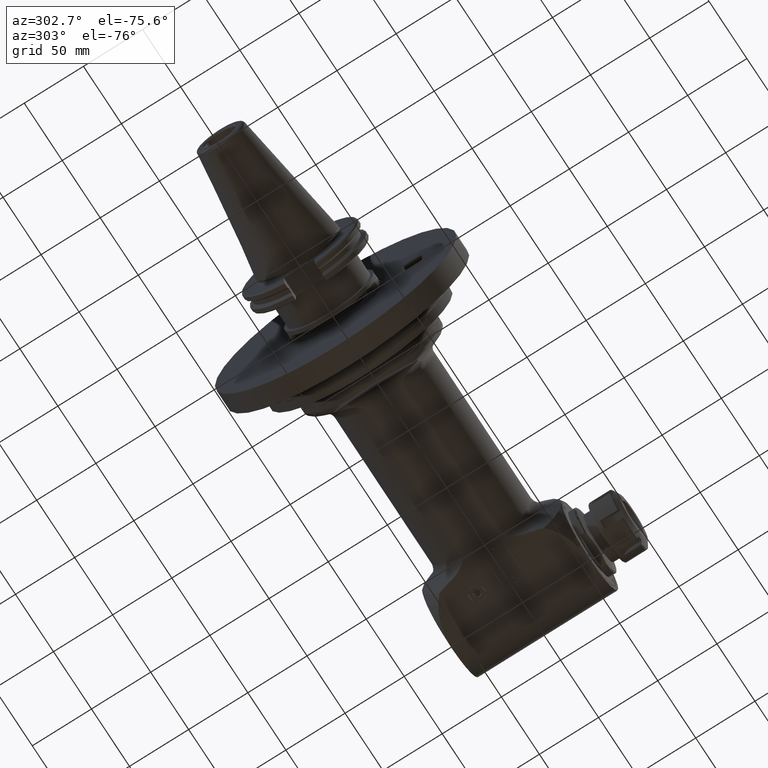
[diagram: clean part render]
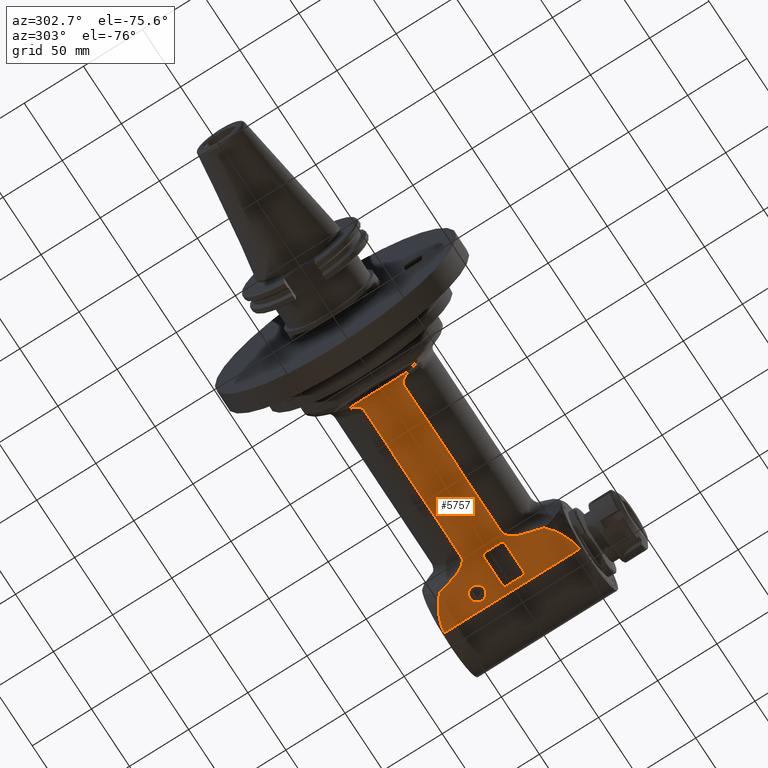
[diagram: same view with one face highlighted and labeled with its STEP entity id]
A machine part, auxiliary view. The second image highlights one B-rep face of the part: STEP entity #5757.
In plain terms, the highlighted planar face has unit normal (0, -0, 1).
Its self-contained STEP definition (entity closure, byte-faithful):
#173=FACE_BOUND('',#860,.T.);
#174=FACE_BOUND('',#861,.T.);
#337=(
BOUNDED_CURVE()
B_SPLINE_CURVE(2,(#9139,#9140,#9141),.UNSPECIFIED.,.F.,.F.)
B_SPLINE_CURVE_WITH_KNOTS((3,3),(4.79555477441371,6.68520697780472),
 .UNSPECIFIED.)
CURVE()
GEOMETRIC_REPRESENTATION_ITEM()
RATIONAL_B_SPLINE_CURVE((1.69612149867023,1.801111277475,1.88075550810713))
REPRESENTATION_ITEM('')
);
#338=(
BOUNDED_CURVE()
B_SPLINE_CURVE(2,(#9143,#9144,#9145),.UNSPECIFIED.,.F.,.F.)
B_SPLINE_CURVE_WITH_KNOTS((3,3),(1.29755190433302,1.81649660283057),
 .UNSPECIFIED.)
CURVE()
GEOMETRIC_REPRESENTATION_ITEM()
RATIONAL_B_SPLINE_CURVE((1.12963768324109,1.15351140083332,1.17574534330147))
REPRESENTATION_ITEM('')
);
#339=(
BOUNDED_CURVE()
B_SPLINE_CURVE(2,(#9147,#9148,#9149),.UNSPECIFIED.,.F.,.F.)
B_SPLINE_CURVE_WITH_KNOTS((3,3),(0.716971306396343,1.10594890275373),
 .UNSPECIFIED.)
CURVE()
GEOMETRIC_REPRESENTATION_ITEM()
RATIONAL_B_SPLINE_CURVE((1.06115823662143,1.07710986727119,1.09236877292359))
REPRESENTATION_ITEM('')
);
#340=(
BOUNDED_CURVE()
B_SPLINE_CURVE(2,(#9151,#9152,#9153),.UNSPECIFIED.,.F.,.F.)
B_SPLINE_CURVE_WITH_KNOTS((3,3),(0.357751352810108,0.644209962076135),
 .UNSPECIFIED.)
CURVE()
GEOMETRIC_REPRESENTATION_ITEM()
RATIONAL_B_SPLINE_CURVE((1.02510632027235,1.03499758933548,1.044632154937))
REPRESENTATION_ITEM('')
);
#341=(
BOUNDED_CURVE()
B_SPLINE_CURVE(2,(#9155,#9156,#9157),.UNSPECIFIED.,.F.,.F.)
B_SPLINE_CURVE_WITH_KNOTS((3,3),(0.0990875874217793,0.320413948043294),
 .UNSPECIFIED.)
CURVE()
GEOMETRIC_REPRESENTATION_ITEM()
RATIONAL_B_SPLINE_CURVE((1.00423924883125,1.0089608143977,1.01362466237175))
REPRESENTATION_ITEM('')
);
#342=(
BOUNDED_CURVE()
B_SPLINE_CURVE(2,(#9159,#9160,#9161),.UNSPECIFIED.,.F.,.F.)
B_SPLINE_CURVE_WITH_KNOTS((3,3),(1.04117070506586,1.17372897081085),
 .UNSPECIFIED.)
CURVE()
GEOMETRIC_REPRESENTATION_ITEM()
RATIONAL_B_SPLINE_CURVE((1.00159422133823,1.00168983751205,1.00178395919087))
REPRESENTATION_ITEM('')
);
#343=(
BOUNDED_CURVE()
B_SPLINE_CURVE(2,(#9165,#9166,#9167),.UNSPECIFIED.,.F.,.F.)
B_SPLINE_CURVE_WITH_KNOTS((3,3),(17.8704813916167,18.0030396573599),
 .UNSPECIFIED.)
CURVE()
GEOMETRIC_REPRESENTATION_ITEM()
RATIONAL_B_SPLINE_CURVE((1.00178395919066,1.00168983751184,1.00159422133802))
REPRESENTATION_ITEM('')
);
#344=(
BOUNDED_CURVE()
B_SPLINE_CURVE(2,(#9169,#9170,#9171),.UNSPECIFIED.,.F.,.F.)
B_SPLINE_CURVE_WITH_KNOTS((3,3),(36.0887977519412,36.3101241125708),
 .UNSPECIFIED.)
CURVE()
GEOMETRIC_REPRESENTATION_ITEM()
RATIONAL_B_SPLINE_CURVE((1.01362466237174,1.00896081439753,1.00423924883091))
REPRESENTATION_ITEM('')
);
#345=(
BOUNDED_CURVE()
B_SPLINE_CURVE(2,(#9173,#9174,#9175),.UNSPECIFIED.,.F.,.F.)
B_SPLINE_CURVE_WITH_KNOTS((3,3),(22.1468749133055,22.4333335225796),
 .UNSPECIFIED.)
CURVE()
GEOMETRIC_REPRESENTATION_ITEM()
RATIONAL_B_SPLINE_CURVE((1.04463215497998,1.03499758937855,1.02510632031552))
REPRESENTATION_ITEM('')
);
#346=(
BOUNDED_CURVE()
B_SPLINE_CURVE(2,(#9177,#9178,#9179),.UNSPECIFIED.,.F.,.F.)
B_SPLINE_CURVE_WITH_KNOTS((3,3),(18.2422510927696,18.6312286891638),
 .UNSPECIFIED.)
CURVE()
GEOMETRIC_REPRESENTATION_ITEM()
RATIONAL_B_SPLINE_CURVE((1.09236877298422,1.07710986733097,1.06115823668033))
REPRESENTATION_ITEM('')
);
#347=(
BOUNDED_CURVE()
B_SPLINE_CURVE(2,(#9181,#9182,#9183),.UNSPECIFIED.,.F.,.F.)
B_SPLINE_CURVE_WITH_KNOTS((3,3),(15.8893855046156,16.4083302031708),
 .UNSPECIFIED.)
CURVE()
GEOMETRIC_REPRESENTATION_ITEM()
RATIONAL_B_SPLINE_CURVE((1.17574534339004,1.15351140092021,1.12963768332618))
REPRESENTATION_ITEM('')
);
#348=(
BOUNDED_CURVE()
B_SPLINE_CURVE(2,(#9185,#9186,#9187),.UNSPECIFIED.,.F.,.F.)
B_SPLINE_CURVE_WITH_KNOTS((3,3),(18.5610515989433,20.4507038026227),
 .UNSPECIFIED.)
CURVE()
GEOMETRIC_REPRESENTATION_ITEM()
RATIONAL_B_SPLINE_CURVE((1.88075550848633,1.80111127784106,1.69612149902103))
REPRESENTATION_ITEM('')
);
#445=B_SPLINE_CURVE_WITH_KNOTS('',3,(#9086,#9087,#9088,#9089,#9090,#9091,
#9092,#9093,#9094,#9095,#9096,#9097),.UNSPECIFIED.,.F.,.F.,(4,2,2,2,2,4),
(-3.19539997434443,-3.09159271726834,-2.96658047424726,-2.57690997577764,
-2.30235248652145,-2.07011511905514),.UNSPECIFIED.);
#446=B_SPLINE_CURVE_WITH_KNOTS('',3,(#9107,#9108,#9109,#9110,#9111,#9112,
#9113,#9114,#9115,#9116,#9117,#9118),.UNSPECIFIED.,.F.,.F.,(4,2,2,2,2,4),
(2.07011355481796,2.30235248652145,2.57690997577764,2.96658047424726,3.09159271726834,
3.19539997434443),.UNSPECIFIED.);
#447=B_SPLINE_CURVE_WITH_KNOTS('',3,(#9122,#9123,#9124,#9125,#9126,#9127,
#9128,#9129,#9130,#9131,#9132,#9133,#9134,#9135,#9136,#9137),
 .UNSPECIFIED.,.F.,.F.,(4,2,2,2,2,2,2,4),(-5.88450777304076,-5.77989509170607,
-5.41995109479012,-5.06000709787417,-4.79155120042495,-4.52309530297573,
-4.34860436740711,-4.20455674250215),.UNSPECIFIED.);
#448=B_SPLINE_CURVE_WITH_KNOTS('',3,(#9188,#9189,#9190,#9191,#9192,#9193,
#9194,#9195,#9196,#9197,#9198,#9199,#9200,#9201,#9202,#9203),
 .UNSPECIFIED.,.F.,.F.,(4,2,2,2,2,2,2,4),(-4.20455674250215,-4.06050911759719,
-3.88601818202857,-3.61756228457935,-3.34910638713013,-2.98916239021418,
-2.62921839329822,-2.52460571197465),.UNSPECIFIED.);
#490=FACE_OUTER_BOUND('',#859,.T.);
#859=EDGE_LOOP('',(#3904,#3905,#3906,#3907,#3908,#3909,#3910,#3911,#3912,
#3913,#3914,#3915,#3916,#3917,#3918,#3919,#3920,#3921,#3922,#3923));
#860=EDGE_LOOP('',(#3924,#3925,#3926,#3927,#3928,#3929,#3930,#3931));
#861=EDGE_LOOP('',(#3932));
#1331=CIRCLE('',#6218,2.);
#1332=CIRCLE('',#6219,2.);
#1333=CIRCLE('',#6220,2.);
#1334=CIRCLE('',#6221,2.);
#1335=CIRCLE('',#6222,6.25);
#1688=LINE('',#9101,#2033);
#1689=LINE('',#9105,#2034);
#1690=LINE('',#9120,#2035);
#1691=LINE('',#9163,#2036);
#1692=LINE('',#9206,#2037);
#1693=LINE('',#9210,#2038);
#1694=LINE('',#9214,#2039);
#1695=LINE('',#9218,#2040);
#2033=VECTOR('',#7012,127.7897678687);
#2034=VECTOR('',#7017,51.5068624833501);
#2035=VECTOR('',#7018,127.7897678687);
#2036=VECTOR('',#7019,114.180488489);
#2037=VECTOR('',#7020,25.);
#2038=VECTOR('',#7023,14.);
#2039=VECTOR('',#7026,25.);
#2040=VECTOR('',#7029,14.);
#2413=VERTEX_POINT('',#9080);
#2414=VERTEX_POINT('',#9085);
#2415=VERTEX_POINT('',#9100);
#2416=VERTEX_POINT('',#9104);
#2417=VERTEX_POINT('',#9106);
#2418=VERTEX_POINT('',#9119);
#2419=VERTEX_POINT('',#9121);
#2420=VERTEX_POINT('',#9138);
#2421=VERTEX_POINT('',#9142);
#2422=VERTEX_POINT('',#9146);
#2423=VERTEX_POINT('',#9150);
#2424=VERTEX_POINT('',#9154);
#2425=VERTEX_POINT('',#9158);
#2426=VERTEX_POINT('',#9162);
#2427=VERTEX_POINT('',#9164);
#2428=VERTEX_POINT('',#9168);
#2429=VERTEX_POINT('',#9172);
#2430=VERTEX_POINT('',#9176);
#2431=VERTEX_POINT('',#9180);
#2432=VERTEX_POINT('',#9184);
#2433=VERTEX_POINT('',#9204);
#2434=VERTEX_POINT('',#9205);
#2435=VERTEX_POINT('',#9207);
#2436=VERTEX_POINT('',#9209);
#2437=VERTEX_POINT('',#9211);
#2438=VERTEX_POINT('',#9213);
#2439=VERTEX_POINT('',#9215);
#2440=VERTEX_POINT('',#9217);
#2441=VERTEX_POINT('',#9220);
#3004=EDGE_CURVE('',#2414,#2413,#445,.T.);
#3006=EDGE_CURVE('',#2414,#2415,#1688,.T.);
#3008=EDGE_CURVE('',#2416,#2413,#1689,.T.);
#3009=EDGE_CURVE('',#2416,#2417,#446,.T.);
#3010=EDGE_CURVE('',#2418,#2417,#1690,.T.);
#3011=EDGE_CURVE('',#2419,#2418,#447,.T.);
#3012=EDGE_CURVE('',#2420,#2419,#337,.T.);
#3013=EDGE_CURVE('',#2421,#2420,#338,.T.);
#3014=EDGE_CURVE('',#2422,#2421,#339,.T.);
#3015=EDGE_CURVE('',#2423,#2422,#340,.T.);
#3016=EDGE_CURVE('',#2424,#2423,#341,.T.);
#3017=EDGE_CURVE('',#2425,#2424,#342,.T.);
#3018=EDGE_CURVE('',#2425,#2426,#1691,.T.);
#3019=EDGE_CURVE('',#2427,#2426,#343,.T.);
#3020=EDGE_CURVE('',#2428,#2427,#344,.T.);
#3021=EDGE_CURVE('',#2429,#2428,#345,.T.);
#3022=EDGE_CURVE('',#2430,#2429,#346,.T.);
#3023=EDGE_CURVE('',#2431,#2430,#347,.T.);
#3024=EDGE_CURVE('',#2432,#2431,#348,.T.);
#3025=EDGE_CURVE('',#2415,#2432,#448,.T.);
#3026=EDGE_CURVE('',#2433,#2434,#1692,.T.);
#3027=EDGE_CURVE('',#2434,#2435,#1331,.T.);
#3028=EDGE_CURVE('',#2435,#2436,#1693,.T.);
#3029=EDGE_CURVE('',#2436,#2437,#1332,.T.);
#3030=EDGE_CURVE('',#2437,#2438,#1694,.T.);
#3031=EDGE_CURVE('',#2438,#2439,#1333,.T.);
#3032=EDGE_CURVE('',#2439,#2440,#1695,.T.);
#3033=EDGE_CURVE('',#2440,#2433,#1334,.T.);
#3034=EDGE_CURVE('',#2441,#2441,#1335,.T.);
#3904=ORIENTED_EDGE('',*,*,#3008,.F.);
#3905=ORIENTED_EDGE('',*,*,#3009,.T.);
#3906=ORIENTED_EDGE('',*,*,#3010,.F.);
#3907=ORIENTED_EDGE('',*,*,#3011,.F.);
#3908=ORIENTED_EDGE('',*,*,#3012,.F.);
#3909=ORIENTED_EDGE('',*,*,#3013,.F.);
#3910=ORIENTED_EDGE('',*,*,#3014,.F.);
#3911=ORIENTED_EDGE('',*,*,#3015,.F.);
#3912=ORIENTED_EDGE('',*,*,#3016,.F.);
#3913=ORIENTED_EDGE('',*,*,#3017,.F.);
#3914=ORIENTED_EDGE('',*,*,#3018,.T.);
#3915=ORIENTED_EDGE('',*,*,#3019,.F.);
#3916=ORIENTED_EDGE('',*,*,#3020,.F.);
#3917=ORIENTED_EDGE('',*,*,#3021,.F.);
#3918=ORIENTED_EDGE('',*,*,#3022,.F.);
#3919=ORIENTED_EDGE('',*,*,#3023,.F.);
#3920=ORIENTED_EDGE('',*,*,#3024,.F.);
#3921=ORIENTED_EDGE('',*,*,#3025,.F.);
#3922=ORIENTED_EDGE('',*,*,#3006,.F.);
#3923=ORIENTED_EDGE('',*,*,#3004,.T.);
#3924=ORIENTED_EDGE('',*,*,#3026,.T.);
#3925=ORIENTED_EDGE('',*,*,#3027,.T.);
#3926=ORIENTED_EDGE('',*,*,#3028,.T.);
#3927=ORIENTED_EDGE('',*,*,#3029,.T.);
#3928=ORIENTED_EDGE('',*,*,#3030,.T.);
#3929=ORIENTED_EDGE('',*,*,#3031,.T.);
#3930=ORIENTED_EDGE('',*,*,#3032,.T.);
#3931=ORIENTED_EDGE('',*,*,#3033,.T.);
#3932=ORIENTED_EDGE('',*,*,#3034,.T.);
#5585=PLANE('',#6217);
#5757=ADVANCED_FACE('',(#490,#173,#174),#5585,.F.);
#6217=AXIS2_PLACEMENT_3D('',#9103,#7015,#7016);
#6218=AXIS2_PLACEMENT_3D('',#9208,#7021,#7022);
#6219=AXIS2_PLACEMENT_3D('',#9212,#7024,#7025);
#6220=AXIS2_PLACEMENT_3D('',#9216,#7027,#7028);
#6221=AXIS2_PLACEMENT_3D('',#9219,#7030,#7031);
#6222=AXIS2_PLACEMENT_3D('',#9221,#7032,#7033);
#7012=DIRECTION('',(1.,0.,0.));
#7015=DIRECTION('center_axis',(0.,0.,1.));
#7016=DIRECTION('ref_axis',(-1.,0.,0.));
#7017=DIRECTION('',(3.46632236039099E-8,-0.999999999999998,-6.08519893886399E-8));
#7018=DIRECTION('',(-1.,0.,0.));
#7019=DIRECTION('',(-2.396469056685E-13,-1.,1.21024487703E-12));
#7020=DIRECTION('',(-1.,0.,0.));
#7021=DIRECTION('center_axis',(0.,0.,1.));
#7022=DIRECTION('ref_axis',(0.,1.,0.));
#7023=DIRECTION('',(0.,-1.,0.));
#7024=DIRECTION('center_axis',(0.,0.,1.));
#7025=DIRECTION('ref_axis',(-1.,0.,0.));
#7026=DIRECTION('',(1.,0.,0.));
#7027=DIRECTION('center_axis',(0.,0.,1.));
#7028=DIRECTION('ref_axis',(0.,-1.,0.));
#7029=DIRECTION('',(0.,1.,0.));
#7030=DIRECTION('center_axis',(0.,0.,1.));
#7031=DIRECTION('ref_axis',(1.,0.,0.));
#7032=DIRECTION('center_axis',(0.,0.,1.));
#7033=DIRECTION('ref_axis',(0.,-1.,0.));
#9080=CARTESIAN_POINT('',(-184.768475161129,-25.7534191275261,-39.0000000062552));
#9085=CARTESIAN_POINT('',(-177.709361554,-16.88934575405,-39.));
#9086=CARTESIAN_POINT('Ctrl Pts',(-177.709361554,-16.8893457540545,-39.));
#9087=CARTESIAN_POINT('Ctrl Pts',(-178.055385744254,-16.8893457540545,-39.));
#9088=CARTESIAN_POINT('Ctrl Pts',(-178.464195711384,-16.9620750928508,-39.));
#9089=CARTESIAN_POINT('Ctrl Pts',(-179.186218599306,-17.2079257490347,-39.));
#9090=CARTESIAN_POINT('Ctrl Pts',(-179.624736057506,-17.4482409864561,-39.));
#9091=CARTESIAN_POINT('Ctrl Pts',(-181.022819613011,-18.4425634126605,-39.));
#9092=CARTESIAN_POINT('Ctrl Pts',(-181.967393150622,-19.6824304983136,-39.));
#9093=CARTESIAN_POINT('Ctrl Pts',(-183.108961469924,-21.5795416916554,-39.));
#9094=CARTESIAN_POINT('Ctrl Pts',(-183.557486402364,-22.4778926599153,-39.));
#9095=CARTESIAN_POINT('Ctrl Pts',(-184.265550658185,-24.1872809591374,-39.));
#9096=CARTESIAN_POINT('Ctrl Pts',(-184.544221759694,-24.9902223628646,-39.));
#9097=CARTESIAN_POINT('Ctrl Pts',(-184.768475356631,-25.753419070081,-39.));
#9100=CARTESIAN_POINT('',(-49.91959368527,-16.88934575405,-39.));
#9101=CARTESIAN_POINT('',(-177.709361554,-16.88934575405,-39.));
#9103=CARTESIAN_POINT('Origin',(50.26368227917,-111.0349607239,-39.));
#9104=CARTESIAN_POINT('',(-184.76847882675,25.7534348035653,-38.9999989614904));
#9105=CARTESIAN_POINT('',(-184.7684765234,25.75344203787,-38.99999688447));
#9106=CARTESIAN_POINT('',(-177.709361554,16.88934575405,-39.));
#9107=CARTESIAN_POINT('Ctrl Pts',(-184.768479888037,25.7534344917232,-39.));
#9108=CARTESIAN_POINT('Ctrl Pts',(-184.54422549627,24.9902331848073,-39.));
#9109=CARTESIAN_POINT('Ctrl Pts',(-184.265552843646,24.1872862352145,-39.));
#9110=CARTESIAN_POINT('Ctrl Pts',(-183.557486402364,22.4778926599153,-39.));
#9111=CARTESIAN_POINT('Ctrl Pts',(-183.108961469924,21.5795416916554,-39.));
#9112=CARTESIAN_POINT('Ctrl Pts',(-181.967393150622,19.6824304983136,-39.));
#9113=CARTESIAN_POINT('Ctrl Pts',(-181.022819613011,18.4425634126605,-39.));
#9114=CARTESIAN_POINT('Ctrl Pts',(-179.624736057506,17.4482409864561,-39.));
#9115=CARTESIAN_POINT('Ctrl Pts',(-179.186218599306,17.2079257490347,-39.));
#9116=CARTESIAN_POINT('Ctrl Pts',(-178.464195711384,16.9620750928508,-39.));
#9117=CARTESIAN_POINT('Ctrl Pts',(-178.055385744254,16.8893457540545,-39.));
#9118=CARTESIAN_POINT('Ctrl Pts',(-177.709361554,16.8893457540545,-39.));
#9119=CARTESIAN_POINT('',(-49.91959368527,16.88934575405,-39.));
#9120=CARTESIAN_POINT('',(-49.91959368527,16.88934575405,-39.));
#9121=CARTESIAN_POINT('',(-39.72057128503,30.28725774374,-38.99999999991));
#9122=CARTESIAN_POINT('Ctrl Pts',(-39.720571285009,30.2872577437348,-39.));
#9123=CARTESIAN_POINT('Ctrl Pts',(-39.8085435948267,29.9322632181918,-39.));
#9124=CARTESIAN_POINT('Ctrl Pts',(-39.9015998878868,29.5857091975881,-39.));
#9125=CARTESIAN_POINT('Ctrl Pts',(-40.3290994481475,28.0973660522483,-39.));
#9126=CARTESIAN_POINT('Ctrl Pts',(-40.7667820583906,26.8540942035799,-39.));
#9127=CARTESIAN_POINT('Ctrl Pts',(-41.8138743582019,24.4435632543477,-39.));
#9128=CARTESIAN_POINT('Ctrl Pts',(-42.4232161398755,23.276274656356,-39.));
#9129=CARTESIAN_POINT('Ctrl Pts',(-43.5279573825611,21.4966191402456,-39.));
#9130=CARTESIAN_POINT('Ctrl Pts',(-44.091138599179,20.6905312952137,-39.));
#9131=CARTESIAN_POINT('Ctrl Pts',(-45.3528743696472,19.2050269011047,-39.));
#9132=CARTESIAN_POINT('Ctrl Pts',(-46.0523127598677,18.5263612782665,-39.));
#9133=CARTESIAN_POINT('Ctrl Pts',(-47.2562799216921,17.6716776235154,-39.));
#9134=CARTESIAN_POINT('Ctrl Pts',(-47.8677770909557,17.3351889944171,-39.));
#9135=CARTESIAN_POINT('Ctrl Pts',(-48.8723307565956,16.991268970364,-39.));
#9136=CARTESIAN_POINT('Ctrl Pts',(-49.4394349355868,16.8893457540545,-39.));
#9137=CARTESIAN_POINT('Ctrl Pts',(-49.91959368527,16.8893457540545,-39.));
#9138=CARTESIAN_POINT('',(-35.8335672407487,44.2718872982791,-38.999999986593));
#9139=CARTESIAN_POINT('Ctrl Pts',(-35.8335672554206,44.2718873027272,-39.));
#9140=CARTESIAN_POINT('Ctrl Pts',(-38.1416007533629,36.6588750842467,-39.));
#9141=CARTESIAN_POINT('Ctrl Pts',(-39.720571285046,30.2872577435843,-39.));
#9142=CARTESIAN_POINT('',(-29.4322291469666,49.4772675165241,-38.9999999975294));
#9143=CARTESIAN_POINT('Ctrl Pts',(-29.4322291423406,49.4772675195197,-39.));
#9144=CARTESIAN_POINT('Ctrl Pts',(-32.8106138957892,46.7892433127456,-39.));
#9145=CARTESIAN_POINT('Ctrl Pts',(-35.8335671950647,44.271887307859,-39.));
#9146=CARTESIAN_POINT('',(-22.6941188343875,53.2447180488068,-38.9999999997025));
#9147=CARTESIAN_POINT('Ctrl Pts',(-22.6941188337088,53.2447180490748,-39.));
#9148=CARTESIAN_POINT('Ctrl Pts',(-26.1867380769882,51.3171852187044,-39.));
#9149=CARTESIAN_POINT('Ctrl Pts',(-29.4322291409991,49.4772675167984,-39.));
#9150=CARTESIAN_POINT('',(-16.53875176149,55.70457790882,-39.));
#9151=CARTESIAN_POINT('Ctrl Pts',(-16.5387517614913,55.7045779088232,-39.));
#9152=CARTESIAN_POINT('Ctrl Pts',(-19.6859233114554,54.4562908156815,-39.));
#9153=CARTESIAN_POINT('Ctrl Pts',(-22.6941188336136,53.2447180487954,-39.));
#9154=CARTESIAN_POINT('',(-10.86746994187,56.92099788303,-39.));
#9155=CARTESIAN_POINT('Ctrl Pts',(-10.8674699418702,56.920997883031,-39.));
#9156=CARTESIAN_POINT('Ctrl Pts',(-13.7337373787226,56.3083484069688,-39.));
#9157=CARTESIAN_POINT('Ctrl Pts',(-16.538751761495,55.7045779088205,-39.));
#9158=CARTESIAN_POINT('',(-9.27093669147723,57.0902369173506,-38.9999995297855));
#9159=CARTESIAN_POINT('Ctrl Pts',(-9.27093668231461,57.0902369196296,-39.));
#9160=CARTESIAN_POINT('Ctrl Pts',(-10.0703882643975,57.0055318391457,-39.));
#9161=CARTESIAN_POINT('Ctrl Pts',(-10.8674699418722,56.9209978830293,-39.));
#9162=CARTESIAN_POINT('',(-9.27093669149862,-57.0902369173554,-38.9999995297399));
#9163=CARTESIAN_POINT('',(-9.270936753198,57.09024424417,-38.99999857477));
#9164=CARTESIAN_POINT('',(-10.86746994187,-56.92099788303,-39.));
#9165=CARTESIAN_POINT('Ctrl Pts',(-10.867469941873,-56.9209978830366,-39.));
#9166=CARTESIAN_POINT('Ctrl Pts',(-10.0703882644082,-57.0055318391519,-39.));
#9167=CARTESIAN_POINT('Ctrl Pts',(-9.27093668233512,-57.0902369196348,-39.));
#9168=CARTESIAN_POINT('',(-16.53875176149,-55.70457790882,-39.));
#9169=CARTESIAN_POINT('Ctrl Pts',(-16.5387517614936,-55.7045779088208,-39.));
#9170=CARTESIAN_POINT('Ctrl Pts',(-13.7337373786188,-56.3083484069911,-39.));
#9171=CARTESIAN_POINT('Ctrl Pts',(-10.8674699416596,-56.9209978830761,-39.));
#9172=CARTESIAN_POINT('',(-22.6941188343874,-53.2447180488069,-38.9999999997024));
#9173=CARTESIAN_POINT('Ctrl Pts',(-22.6941188336135,-53.2447180487954,-39.));
#9174=CARTESIAN_POINT('Ctrl Pts',(-19.6859233116075,-54.4562908156203,-39.));
#9175=CARTESIAN_POINT('Ctrl Pts',(-16.5387517618096,-55.704577908697,-39.));
#9176=CARTESIAN_POINT('',(-29.4322291469666,-49.477267516141,-38.9999999980154));
#9177=CARTESIAN_POINT('Ctrl Pts',(-29.4322291409992,-49.4772675167984,-39.));
#9178=CARTESIAN_POINT('Ctrl Pts',(-26.1867380769882,-51.3171852187044,-39.));
#9179=CARTESIAN_POINT('Ctrl Pts',(-22.6941188337086,-53.2447180490748,-39.));
#9180=CARTESIAN_POINT('',(-35.8335672407487,-44.2718872982792,-38.999999986593));
#9181=CARTESIAN_POINT('Ctrl Pts',(-35.8335671950647,-44.2718873078591,-39.));
#9182=CARTESIAN_POINT('Ctrl Pts',(-32.8106138957892,-46.7892433127456,-39.));
#9183=CARTESIAN_POINT('Ctrl Pts',(-29.4322291423406,-49.4772675195197,-39.));
#9184=CARTESIAN_POINT('',(-39.72057128503,-30.28725774362,-39.00000000001));
#9185=CARTESIAN_POINT('Ctrl Pts',(-39.7205712848601,-30.2872577443346,-39.));
#9186=CARTESIAN_POINT('Ctrl Pts',(-38.1416007532292,-36.6588750846875,-39.));
#9187=CARTESIAN_POINT('Ctrl Pts',(-35.8335672554206,-44.2718873027273,-39.));
#9188=CARTESIAN_POINT('Ctrl Pts',(-49.91959368527,-16.8893457540545,-39.));
#9189=CARTESIAN_POINT('Ctrl Pts',(-49.4394349355868,-16.8893457540545,-39.));
#9190=CARTESIAN_POINT('Ctrl Pts',(-48.8723307565956,-16.991268970364,-39.));
#9191=CARTESIAN_POINT('Ctrl Pts',(-47.8677770909557,-17.3351889944171,-39.));
#9192=CARTESIAN_POINT('Ctrl Pts',(-47.2562799216921,-17.6716776235154,-39.));
#9193=CARTESIAN_POINT('Ctrl Pts',(-46.0523127598677,-18.5263612782665,-39.));
#9194=CARTESIAN_POINT('Ctrl Pts',(-45.3528743696472,-19.2050269011047,-39.));
#9195=CARTESIAN_POINT('Ctrl Pts',(-44.091138599179,-20.6905312952137,-39.));
#9196=CARTESIAN_POINT('Ctrl Pts',(-43.5279573825611,-21.4966191402456,-39.));
#9197=CARTESIAN_POINT('Ctrl Pts',(-42.4232161398755,-23.276274656356,-39.));
#9198=CARTESIAN_POINT('Ctrl Pts',(-41.8138743582019,-24.4435632543477,-39.));
#9199=CARTESIAN_POINT('Ctrl Pts',(-40.7667820583906,-26.8540942035799,-39.));
#9200=CARTESIAN_POINT('Ctrl Pts',(-40.3290994481475,-28.0973660522483,-39.));
#9201=CARTESIAN_POINT('Ctrl Pts',(-39.9015998878971,-29.5857091975525,-39.));
#9202=CARTESIAN_POINT('Ctrl Pts',(-39.8085435948465,-29.9322632181182,-39.));
#9203=CARTESIAN_POINT('Ctrl Pts',(-39.720571285037,-30.2872577436217,-39.));
#9204=CARTESIAN_POINT('',(-16.49999954404,3.499999689438,-39.));
#9205=CARTESIAN_POINT('',(-41.49999954404,3.499999689438,-39.));
#9206=CARTESIAN_POINT('',(-16.49999954404,3.499999689438,-39.));
#9207=CARTESIAN_POINT('',(-43.49999954404,1.499999689438,-39.));
#9208=CARTESIAN_POINT('Origin',(-41.49999954404,1.499999689438,-39.));
#9209=CARTESIAN_POINT('',(-43.49999954404,-12.50000031056,-39.));
#9210=CARTESIAN_POINT('',(-43.49999954404,1.499999689438,-39.));
#9211=CARTESIAN_POINT('',(-41.49999954404,-14.50000031056,-39.));
#9212=CARTESIAN_POINT('Origin',(-41.49999954404,-12.50000031056,-39.));
#9213=CARTESIAN_POINT('',(-16.49999954404,-14.50000031056,-39.));
#9214=CARTESIAN_POINT('',(-41.49999954404,-14.50000031056,-39.));
#9215=CARTESIAN_POINT('',(-14.49999954404,-12.50000031056,-39.));
#9216=CARTESIAN_POINT('Origin',(-16.49999954404,-12.50000031056,-39.));
#9217=CARTESIAN_POINT('',(-14.49999954404,1.499999689438,-39.));
#9218=CARTESIAN_POINT('',(-14.49999954404,-12.50000031056,-39.));
#9219=CARTESIAN_POINT('Origin',(-16.49999954404,1.499999689438,-39.));
#9220=CARTESIAN_POINT('',(-21.,28.25,-39.));
#9221=CARTESIAN_POINT('Origin',(-21.,22.,-39.));